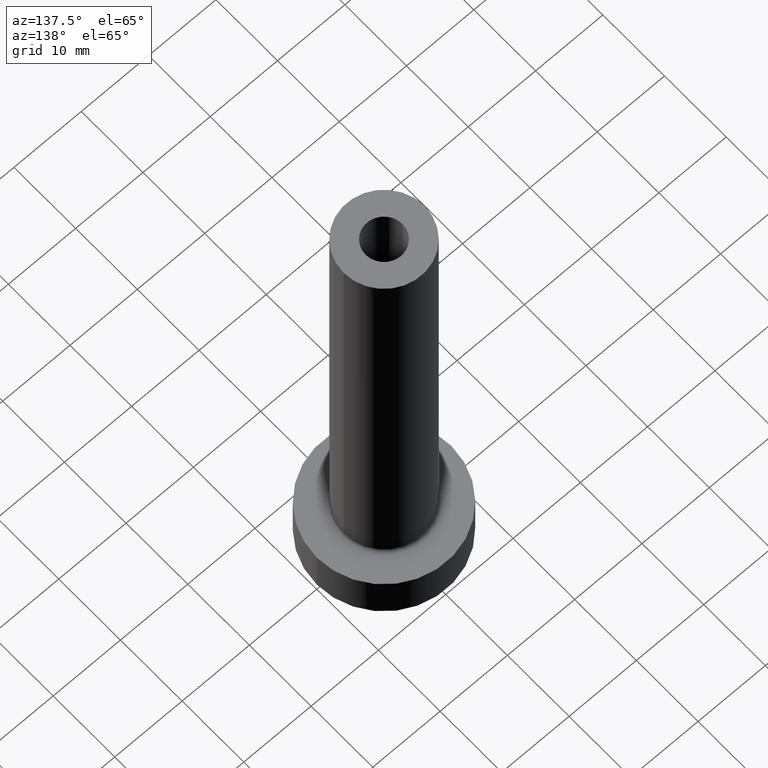
[diagram: clean part render]
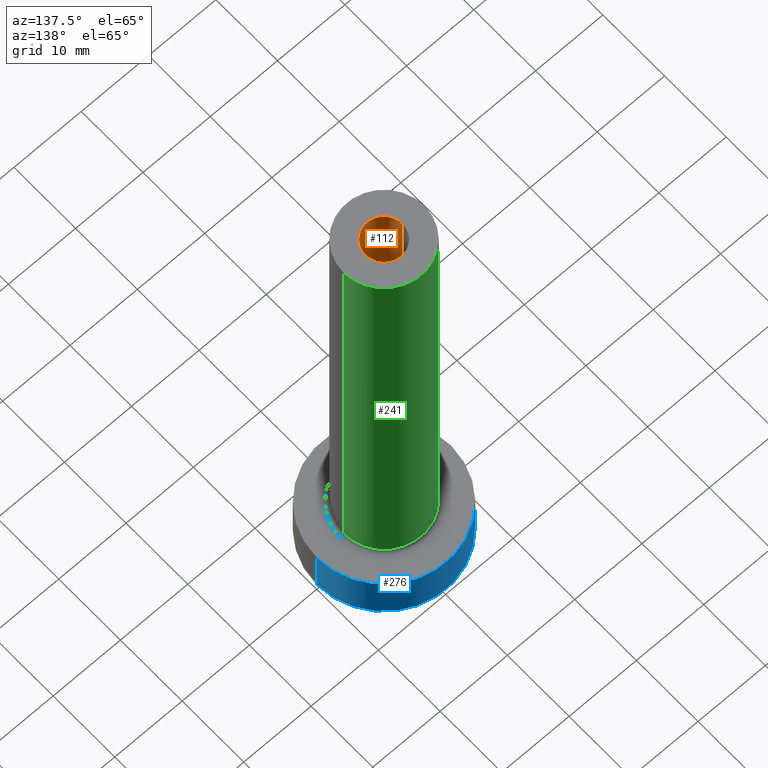
[diagram: same view with three faces highlighted in distinct colors, each labeled with its STEP entity id]
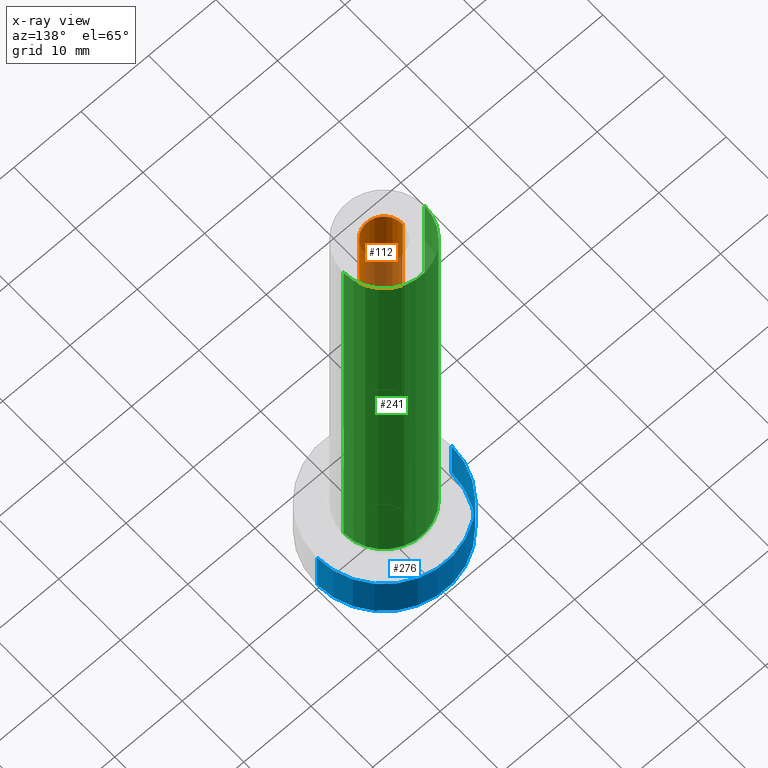
[diagram: x-ray of the same camera — body ghosted, the three highlighted faces saturated]
A machine part, auxiliary view with three faces highlighted in distinct colors.
The next image is the same camera in x-ray (body ghosted, the three faces saturated) — at least one of them is partly hidden behind the body in this view.
Their STEP definitions:

[orange] entity #112 — the highlighted cylindrical surface (edge-blend (fillet) strip) has radius 2.75 mm, axis along (0, 0, -1).
#5 = LINE ( 'NONE', #12, #45 ) ;
#12 = CARTESIAN_POINT ( 'NONE',  ( 2.750000000000000000, 3.367778697655220519E-16, 75.00000000000001421 ) ) ;
#29 = VERTEX_POINT ( 'NONE', #449 ) ;
#30 = AXIS2_PLACEMENT_3D ( 'NONE', #330, #244, #58 ) ;
#45 = VECTOR ( 'NONE', #369, 1000.000000000000000 ) ;
#50 = CARTESIAN_POINT ( 'NONE',  ( -2.750000000000000000, 0.000000000000000000, 75.00000000000001421 ) ) ;
#51 = DIRECTION ( 'NONE',  ( 0.000000000000000000, 0.000000000000000000, 1.000000000000000000 ) ) ;
#57 = ORIENTED_EDGE ( 'NONE', *, *, #375, .F. ) ;
#58 = DIRECTION ( 'NONE',  ( -1.000000000000000000, 0.000000000000000000, 0.000000000000000000 ) ) ;
#59 = ORIENTED_EDGE ( 'NONE', *, *, #81, .T. ) ;
#73 = VERTEX_POINT ( 'NONE', #50 ) ;
#76 = CARTESIAN_POINT ( 'NONE',  ( 0.000000000000000000, 0.000000000000000000, 75.00000000000001421 ) ) ;
#81 = EDGE_CURVE ( 'NONE', #29, #196, #5, .T. ) ;
#89 = EDGE_CURVE ( 'NONE', #73, #29, #283, .T. ) ;
#98 = VERTEX_POINT ( 'NONE', #337 ) ;
#101 = LINE ( 'NONE', #171, #411 ) ;
#102 = ORIENTED_EDGE ( 'NONE', *, *, #191, .F. ) ;
#112 = ADVANCED_FACE ( 'NONE', ( #135 ), #185, .F. ) ;
#117 = DIRECTION ( 'NONE',  ( 0.000000000000000000, 0.000000000000000000, 1.000000000000000000 ) ) ;
#128 = CARTESIAN_POINT ( 'NONE',  ( 0.000000000000000000, 0.000000000000000000, 30.00000000000001421 ) ) ;
#132 = CIRCLE ( 'NONE', #226, 2.750000000000000000 ) ;
#135 = FACE_OUTER_BOUND ( 'NONE', #334, .T. ) ;
#171 = CARTESIAN_POINT ( 'NONE',  ( -2.750000000000000000, 0.000000000000000000, 75.00000000000001421 ) ) ;
#185 = CYLINDRICAL_SURFACE ( 'NONE', #30, 2.750000000000000000 ) ;
#191 = EDGE_CURVE ( 'NONE', #98, #196, #132, .T. ) ;
#193 = AXIS2_PLACEMENT_3D ( 'NONE', #76, #117, #363 ) ;
#196 = VERTEX_POINT ( 'NONE', #235 ) ;
#226 = AXIS2_PLACEMENT_3D ( 'NONE', #128, #51, #448 ) ;
#235 = CARTESIAN_POINT ( 'NONE',  ( 2.750000000000000000, 3.367778697655220519E-16, 30.00000000000001421 ) ) ;
#244 = DIRECTION ( 'NONE',  ( 0.000000000000000000, 0.000000000000000000, -1.000000000000000000 ) ) ;
#283 = CIRCLE ( 'NONE', #193, 2.750000000000000000 ) ;
#330 = CARTESIAN_POINT ( 'NONE',  ( 0.000000000000000000, 0.000000000000000000, 75.00000000000001421 ) ) ;
#334 = EDGE_LOOP ( 'NONE', ( #340, #59, #102, #57 ) ) ;
#337 = CARTESIAN_POINT ( 'NONE',  ( -2.750000000000000000, 0.000000000000000000, 30.00000000000001421 ) ) ;
#340 = ORIENTED_EDGE ( 'NONE', *, *, #89, .T. ) ;
#363 = DIRECTION ( 'NONE',  ( 1.000000000000000000, 0.000000000000000000, 0.000000000000000000 ) ) ;
#369 = DIRECTION ( 'NONE',  ( 0.000000000000000000, 0.000000000000000000, -1.000000000000000000 ) ) ;
#375 = EDGE_CURVE ( 'NONE', #73, #98, #101, .T. ) ;
#380 = DIRECTION ( 'NONE',  ( 0.000000000000000000, 0.000000000000000000, -1.000000000000000000 ) ) ;
#411 = VECTOR ( 'NONE', #380, 1000.000000000000000 ) ;
#448 = DIRECTION ( 'NONE',  ( 1.000000000000000000, 0.000000000000000000, 0.000000000000000000 ) ) ;
#449 = CARTESIAN_POINT ( 'NONE',  ( 2.750000000000000000, 3.367778697655220519E-16, 75.00000000000001421 ) ) ;

[blue] entity #276 — the highlighted cylindrical surface (partial cylindrical patch) has radius 10 mm, axis along (-0, -0, -1).
#7 = DIRECTION ( 'NONE',  ( 1.000000000000000000, 0.000000000000000000, 0.000000000000000000 ) ) ;
#10 = CARTESIAN_POINT ( 'NONE',  ( 0.000000000000000000, 0.000000000000000000, 0.000000000000000000 ) ) ;
#20 = ORIENTED_EDGE ( 'NONE', *, *, #297, .F. ) ;
#26 = VERTEX_POINT ( 'NONE', #315 ) ;
#40 = DIRECTION ( 'NONE',  ( -0.000000000000000000, -0.000000000000000000, -1.000000000000000000 ) ) ;
#85 = CYLINDRICAL_SURFACE ( 'NONE', #414, 10.00000000000000000 ) ;
#87 = CARTESIAN_POINT ( 'NONE',  ( 10.00000000000000000, 1.224646799147353256E-15, 7.000000000000000000 ) ) ;
#93 = EDGE_CURVE ( 'NONE', #240, #148, #404, .T. ) ;
#108 = VECTOR ( 'NONE', #113, 1000.000000000000000 ) ;
#111 = CARTESIAN_POINT ( 'NONE',  ( 10.00000000000000000, 1.224646799147353256E-15, 7.000000000000000000 ) ) ;
#113 = DIRECTION ( 'NONE',  ( -0.000000000000000000, -0.000000000000000000, -1.000000000000000000 ) ) ;
#114 = DIRECTION ( 'NONE',  ( 1.000000000000000000, 0.000000000000000000, 0.000000000000000000 ) ) ;
#145 = CARTESIAN_POINT ( 'NONE',  ( -10.00000000000000000, 0.000000000000000000, 7.000000000000000000 ) ) ;
#148 = VERTEX_POINT ( 'NONE', #314 ) ;
#151 = CARTESIAN_POINT ( 'NONE',  ( 0.000000000000000000, 0.000000000000000000, 7.000000000000000000 ) ) ;
#159 = VERTEX_POINT ( 'NONE', #194 ) ;
#177 = CIRCLE ( 'NONE', #245, 10.00000000000000000 ) ;
#178 = ORIENTED_EDGE ( 'NONE', *, *, #93, .T. ) ;
#180 = CARTESIAN_POINT ( 'NONE',  ( 0.000000000000000000, 0.000000000000000000, 7.000000000000000000 ) ) ;
#184 = LINE ( 'NONE', #145, #108 ) ;
#194 = CARTESIAN_POINT ( 'NONE',  ( -10.00000000000000000, 0.000000000000000000, 0.000000000000000000 ) ) ;
#198 = DIRECTION ( 'NONE',  ( -1.000000000000000000, 0.000000000000000000, 0.000000000000000000 ) ) ;
#201 = ORIENTED_EDGE ( 'NONE', *, *, #438, .F. ) ;
#240 = VERTEX_POINT ( 'NONE', #111 ) ;
#245 = AXIS2_PLACEMENT_3D ( 'NONE', #180, #325, #7 ) ;
#266 = CIRCLE ( 'NONE', #323, 10.00000000000000000 ) ;
#268 = EDGE_LOOP ( 'NONE', ( #201, #178, #372, #20 ) ) ;
#276 = ADVANCED_FACE ( 'NONE', ( #400 ), #85, .T. ) ;
#296 = DIRECTION ( 'NONE',  ( 0.000000000000000000, 0.000000000000000000, 1.000000000000000000 ) ) ;
#297 = EDGE_CURVE ( 'NONE', #26, #159, #184, .T. ) ;
#302 = DIRECTION ( 'NONE',  ( -0.000000000000000000, -0.000000000000000000, -1.000000000000000000 ) ) ;
#305 = EDGE_CURVE ( 'NONE', #148, #159, #266, .T. ) ;
#314 = CARTESIAN_POINT ( 'NONE',  ( 10.00000000000000000, 1.224646799147353256E-15, 0.000000000000000000 ) ) ;
#315 = CARTESIAN_POINT ( 'NONE',  ( -10.00000000000000000, 0.000000000000000000, 7.000000000000000000 ) ) ;
#323 = AXIS2_PLACEMENT_3D ( 'NONE', #10, #296, #114 ) ;
#325 = DIRECTION ( 'NONE',  ( 0.000000000000000000, 0.000000000000000000, 1.000000000000000000 ) ) ;
#372 = ORIENTED_EDGE ( 'NONE', *, *, #305, .T. ) ;
#400 = FACE_OUTER_BOUND ( 'NONE', #268, .T. ) ;
#404 = LINE ( 'NONE', #87, #447 ) ;
#414 = AXIS2_PLACEMENT_3D ( 'NONE', #151, #302, #198 ) ;
#438 = EDGE_CURVE ( 'NONE', #240, #26, #177, .T. ) ;
#447 = VECTOR ( 'NONE', #40, 1000.000000000000000 ) ;

[green] entity #241 — the highlighted cylindrical surface (partial cylindrical patch) has radius 6 mm, axis along (-0, -0, -1).
#9 = CARTESIAN_POINT ( 'NONE',  ( -6.000000000000000888, 0.000000000000000000, 75.00000000000001421 ) ) ;
#31 = VERTEX_POINT ( 'NONE', #382 ) ;
#47 = VECTOR ( 'NONE', #154, 1000.000000000000000 ) ;
#48 = EDGE_CURVE ( 'NONE', #271, #264, #454, .T. ) ;
#69 = DIRECTION ( 'NONE',  ( 1.000000000000000000, 0.000000000000000000, 0.000000000000000000 ) ) ;
#86 = DIRECTION ( 'NONE',  ( -0.000000000000000000, -0.000000000000000000, -1.000000000000000000 ) ) ;
#91 = ORIENTED_EDGE ( 'NONE', *, *, #351, .F. ) ;
#120 = DIRECTION ( 'NONE',  ( 1.000000000000000000, 0.000000000000000000, 0.000000000000000000 ) ) ;
#136 = VECTOR ( 'NONE', #141, 1000.000000000000000 ) ;
#138 = LINE ( 'NONE', #9, #136 ) ;
#140 = AXIS2_PLACEMENT_3D ( 'NONE', #263, #86, #356 ) ;
#141 = DIRECTION ( 'NONE',  ( -0.000000000000000000, -0.000000000000000000, -1.000000000000000000 ) ) ;
#144 = AXIS2_PLACEMENT_3D ( 'NONE', #160, #209, #120 ) ;
#154 = DIRECTION ( 'NONE',  ( -0.000000000000000000, -0.000000000000000000, -1.000000000000000000 ) ) ;
#160 = CARTESIAN_POINT ( 'NONE',  ( 0.000000000000000000, 0.000000000000000000, 75.00000000000001421 ) ) ;
#169 = CIRCLE ( 'NONE', #144, 6.000000000000000888 ) ;
#181 = EDGE_CURVE ( 'NONE', #31, #271, #335, .T. ) ;
#205 = VERTEX_POINT ( 'NONE', #279 ) ;
#209 = DIRECTION ( 'NONE',  ( 0.000000000000000000, 0.000000000000000000, 1.000000000000000000 ) ) ;
#223 = AXIS2_PLACEMENT_3D ( 'NONE', #452, #288, #69 ) ;
#233 = CARTESIAN_POINT ( 'NONE',  ( 6.000000000000000888, 7.347880794884120722E-16, 75.00000000000001421 ) ) ;
#236 = CARTESIAN_POINT ( 'NONE',  ( -6.000000000000000888, 0.000000000000000000, 7.500000000000007105 ) ) ;
#241 = ADVANCED_FACE ( 'NONE', ( #433 ), #291, .T. ) ;
#263 = CARTESIAN_POINT ( 'NONE',  ( 0.000000000000000000, 0.000000000000000000, 75.00000000000001421 ) ) ;
#264 = VERTEX_POINT ( 'NONE', #236 ) ;
#271 = VERTEX_POINT ( 'NONE', #371 ) ;
#279 = CARTESIAN_POINT ( 'NONE',  ( -6.000000000000000888, 0.000000000000000000, 75.00000000000001421 ) ) ;
#288 = DIRECTION ( 'NONE',  ( 0.000000000000000000, 0.000000000000000000, 1.000000000000000000 ) ) ;
#291 = CYLINDRICAL_SURFACE ( 'NONE', #140, 6.000000000000000888 ) ;
#308 = ORIENTED_EDGE ( 'NONE', *, *, #181, .T. ) ;
#321 = ORIENTED_EDGE ( 'NONE', *, *, #441, .F. ) ;
#335 = LINE ( 'NONE', #233, #47 ) ;
#351 = EDGE_CURVE ( 'NONE', #31, #205, #169, .T. ) ;
#356 = DIRECTION ( 'NONE',  ( -1.000000000000000000, 0.000000000000000000, 0.000000000000000000 ) ) ;
#371 = CARTESIAN_POINT ( 'NONE',  ( 6.000000000000000888, 7.347880794884120722E-16, 7.500000000000007105 ) ) ;
#382 = CARTESIAN_POINT ( 'NONE',  ( 6.000000000000000888, 7.347880794884120722E-16, 75.00000000000001421 ) ) ;
#407 = EDGE_LOOP ( 'NONE', ( #91, #308, #409, #321 ) ) ;
#409 = ORIENTED_EDGE ( 'NONE', *, *, #48, .T. ) ;
#433 = FACE_OUTER_BOUND ( 'NONE', #407, .T. ) ;
#441 = EDGE_CURVE ( 'NONE', #205, #264, #138, .T. ) ;
#452 = CARTESIAN_POINT ( 'NONE',  ( 0.000000000000000000, 0.000000000000000000, 7.500000000000007105 ) ) ;
#454 = CIRCLE ( 'NONE', #223, 6.000000000000000888 ) ;